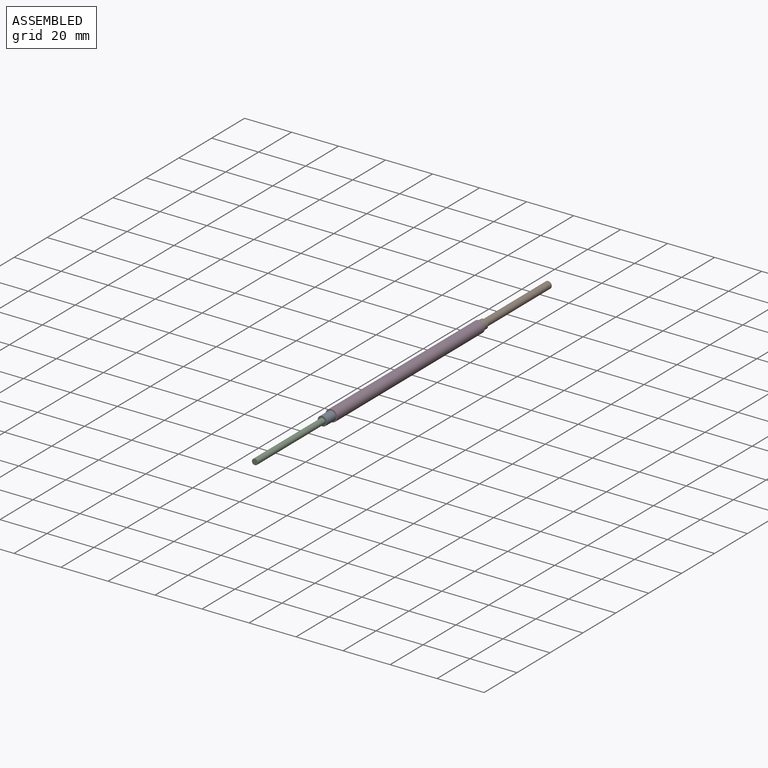
[diagram: assembled view]
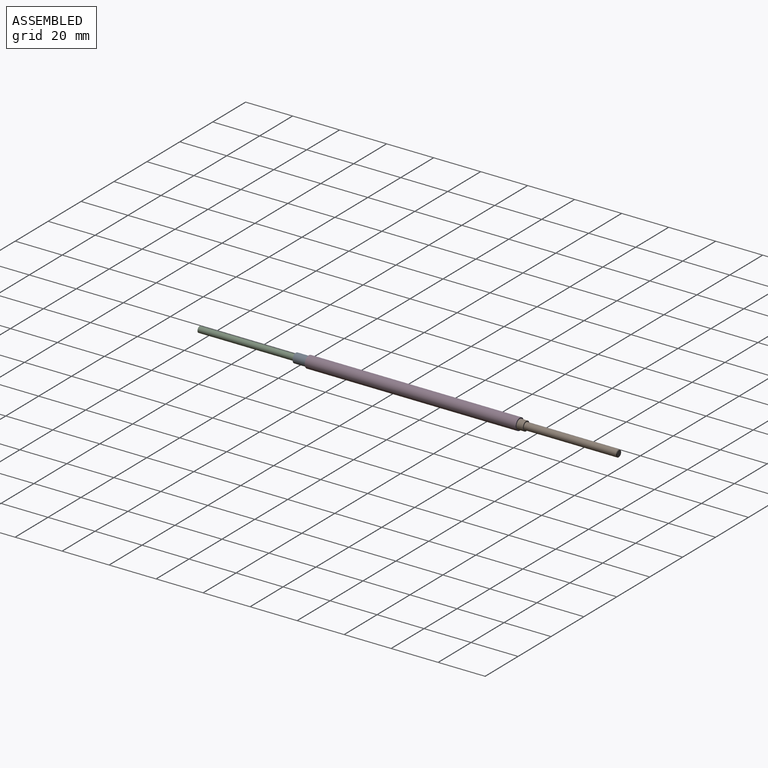
[diagram: assembled view, second angle]
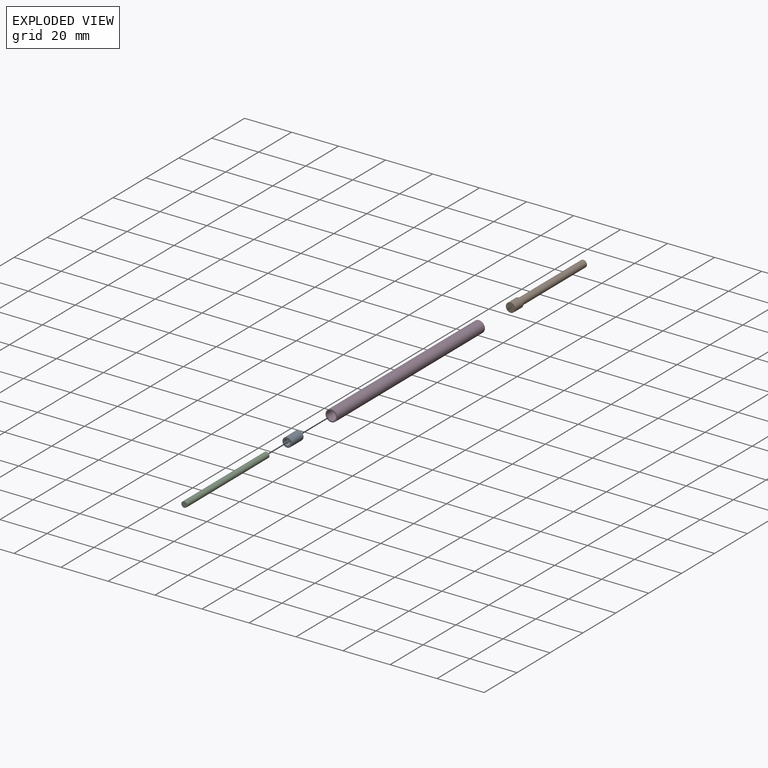
[diagram: exploded view]
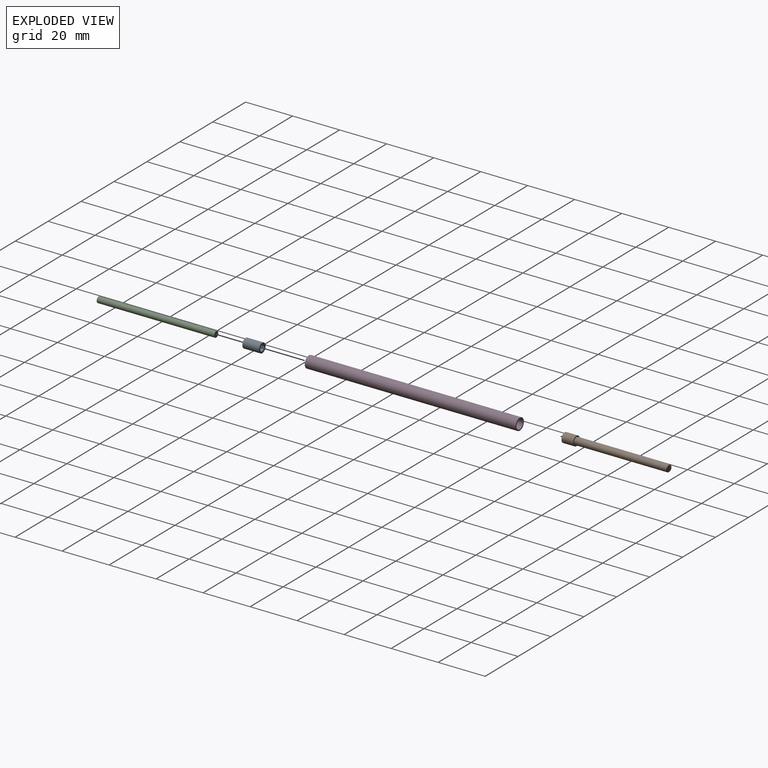
[diagram: exploded view, second angle]
ASSEMBLY  parts=4 mates=6
PART A: 4 faces, bbox 4x7.1x4 mm
  f0: plane 4x4mm, normal (0,-1,0), area 7.5mm2, adj f1,f3
  f1: cylinder r=1.28mm len=7.1mm, axis (0,-1,0), area 56.9mm2, adj f0,f2
  f2: plane 4x4mm, normal (0,1,0), area 7.5mm2, adj f1,f3
  f3: cylinder r=2mm len=7.1mm, axis (0,-1,0), area 89.2mm2, adj f0,f2
PART B: 6 faces, bbox 4x44.5x4 mm
  f0: cylinder r=1.5mm len=39.29mm, axis (0,1,0), area 370.3mm2, adj f4,f5
  f1: plane 2.6x2.6mm, normal (0,1,0), area 5.3mm2, adj f5
  f2: cylinder r=2mm len=5mm, axis (0,1,0), area 62.8mm2, adj f3,f4
  f3: plane 4x4mm, normal (0,-1,0), area 12.6mm2, adj f2
  f4: plane 4x4mm, normal (0,1,0), area 5.5mm2, adj f0,f2
  f5: cone r=1.5mm half-angle=45deg, axis (0,-1,0), area 2.5mm2, adj f0,f1
PART C: 4 faces, bbox 2.5x50x2.5 mm
  f0: cylinder r=0.04mm len=50mm, axis (0,1,0), area 12.6mm2, adj f2,f3
  f1: cylinder r=1.25mm len=50mm, axis (0,1,0), area 392.7mm2, adj f2,f3
  f2: plane 2.5x2.5mm, normal (0,-1,0), area 4.9mm2, adj f0,f1
  f3: plane 2.5x2.5mm, normal (0,1,0), area 4.9mm2, adj f0,f1
PART D: 4 faces, bbox 5x89.8x5 mm
  f0: cylinder r=2mm len=89.75mm, axis (0,1,0), area 1127.8mm2, adj f2,f3
  f1: cylinder r=2.5mm len=89.75mm, axis (0,1,0), area 1409.8mm2, adj f2,f3
  f2: plane 5x5mm, normal (0,-1,0), area 7.1mm2, adj f0,f1
  f3: plane 5x5mm, normal (0,1,0), area 7.1mm2, adj f0,f1
PLACE A rot(axis=(0,-1,0),155.3deg) t=(-28.11,-78.22,-15.36)mm
PLACE B rot(axis=(0,1,0),180deg) t=(-28.11,59.25,-15.36)mm
PLACE C rot(axis=(0,-1,0),65.3deg) t=(-28.11,-69.22,-15.36)mm
PLACE D t=(-28.11,17.03,-15.36)mm fixed
MATE cylindrical A.f1 <-> D.f0  axis (0,-1,0) through (-28.11,-74.67,-15.36)mm
MATE planar D.f1 <-> B.f2  axis (0,1,0) through (-28.11,17.03,-15.36)mm
MATE cylindrical C.f1 <-> A.f1  axis (0,1,0) through (-28.11,-94.22,-15.36)mm
MATE planar A.f1 <-> C.f1  axis (0,-1,0) through (-28.11,-78.22,-15.36)mm
MATE cylindrical B.f2 <-> D.f0  axis (0,1,0) through (-28.11,17.26,-15.36)mm
MATE planar D.f1 <-> A.f1  axis (0,-1,0) through (-28.11,-72.72,-15.36)mm
